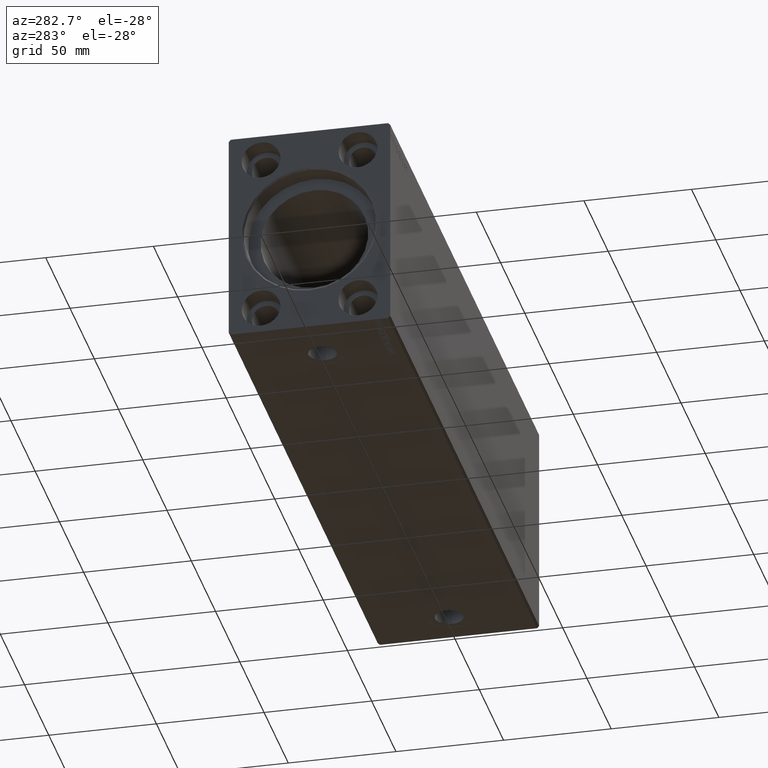
[diagram: clean part render]
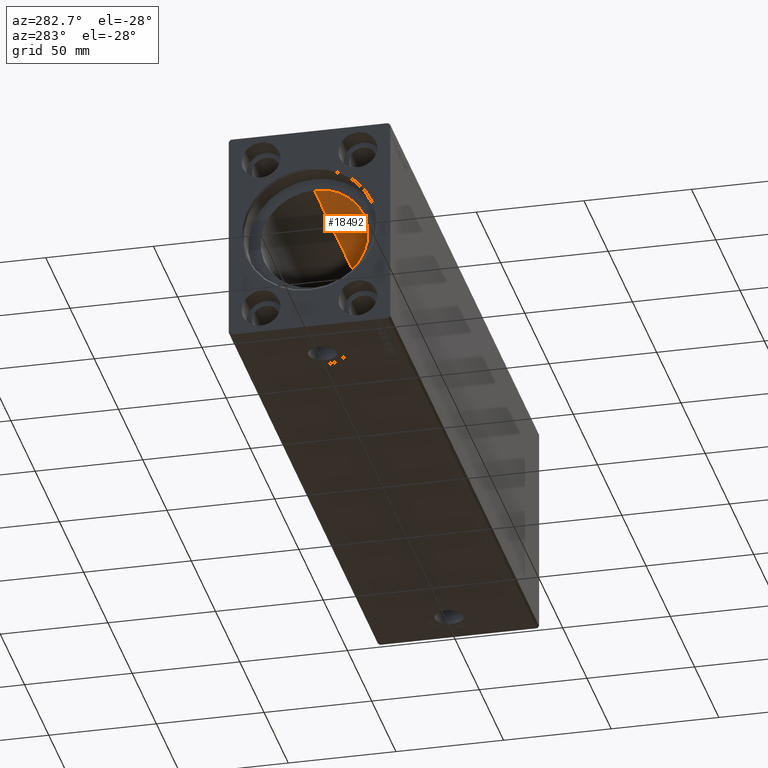
[diagram: same view with one face highlighted and labeled with its STEP entity id]
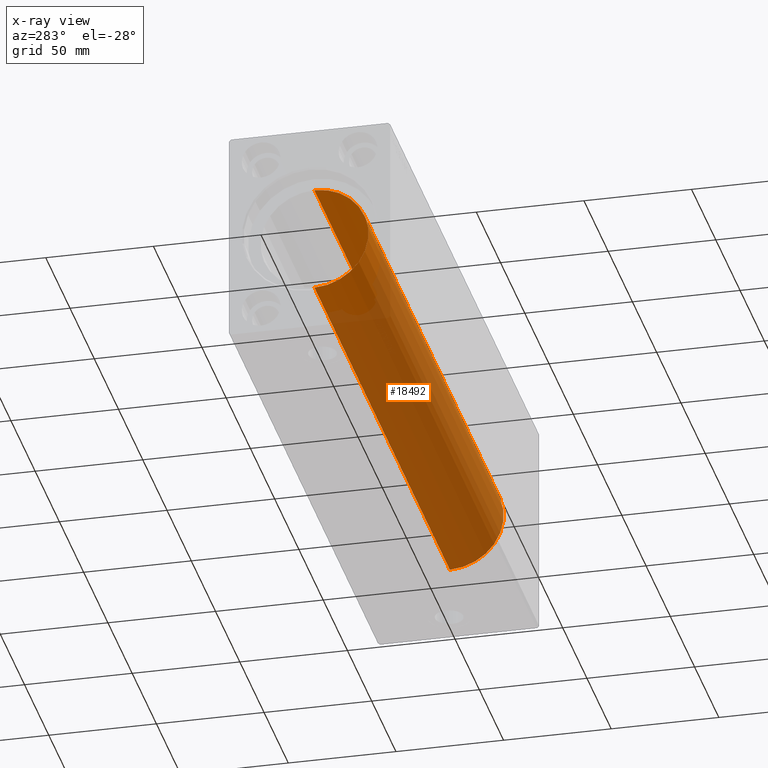
[diagram: x-ray of the same camera — body ghosted, the highlighted face saturated]
A machine part, auxiliary view. The second image highlights one B-rep face of the part: STEP entity #18492.
The next image is the same camera in x-ray: the body ghosted, the highlighted face saturated — about 82% of this face is hidden behind the body in this view.
In plain terms, the highlighted cylindrical surface (partial cylindrical patch) has radius 25 mm, axis along (-1, -0, -0).
Its self-contained STEP definition (entity closure, byte-faithful):
#695 = VECTOR ( 'NONE', #3906, 1000.000000000000000 ) ;
#1247 = CARTESIAN_POINT ( 'NONE',  ( 289.1999999999999886, 3.061616997868383043E-15, -25.00000000000000000 ) ) ;
#3906 = DIRECTION ( 'NONE',  ( -1.000000000000000000, -0.000000000000000000, -0.000000000000000000 ) ) ;
#4202 = CARTESIAN_POINT ( 'NONE',  ( 10.00000000000000888, 0.000000000000000000, 0.000000000000000000 ) ) ;
#4348 = EDGE_LOOP ( 'NONE', ( #24108, #39495, #38309, #22721 ) ) ;
#7739 = VECTOR ( 'NONE', #28313, 1000.000000000000000 ) ;
#8021 = CARTESIAN_POINT ( 'NONE',  ( 289.1999999999999886, 0.000000000000000000, 25.00000000000000000 ) ) ;
#8270 = CARTESIAN_POINT ( 'NONE',  ( 10.00000000000000888, 3.061616997868383043E-15, -25.00000000000000000 ) ) ;
#8732 = EDGE_CURVE ( 'NONE', #31361, #38836, #36799, .T. ) ;
#8764 = AXIS2_PLACEMENT_3D ( 'NONE', #29076, #22832, #38739 ) ;
#9937 = LINE ( 'NONE', #36144, #695 ) ;
#9953 = VERTEX_POINT ( 'NONE', #8021 ) ;
#10457 = DIRECTION ( 'NONE',  ( 0.000000000000000000, 0.000000000000000000, 1.000000000000000000 ) ) ;
#13158 = CYLINDRICAL_SURFACE ( 'NONE', #8764, 25.00000000000000000 ) ;
#16572 = DIRECTION ( 'NONE',  ( -1.000000000000000000, 0.000000000000000000, 0.000000000000000000 ) ) ;
#17308 = CIRCLE ( 'NONE', #38566, 25.00000000000000000 ) ;
#18492 = ADVANCED_FACE ( 'NONE', ( #32496 ), #13158, .F. ) ;
#22721 = ORIENTED_EDGE ( 'NONE', *, *, #33081, .F. ) ;
#22814 = DIRECTION ( 'NONE',  ( 0.000000000000000000, 0.000000000000000000, 1.000000000000000000 ) ) ;
#22832 = DIRECTION ( 'NONE',  ( -1.000000000000000000, -0.000000000000000000, -0.000000000000000000 ) ) ;
#23234 = CARTESIAN_POINT ( 'NONE',  ( 289.1999999999999886, 0.000000000000000000, 0.000000000000000000 ) ) ;
#24108 = ORIENTED_EDGE ( 'NONE', *, *, #31735, .F. ) ;
#25623 = EDGE_CURVE ( 'NONE', #38533, #31361, #9937, .T. ) ;
#27866 = AXIS2_PLACEMENT_3D ( 'NONE', #4202, #39664, #10457 ) ;
#28098 = LINE ( 'NONE', #40983, #7739 ) ;
#28313 = DIRECTION ( 'NONE',  ( -1.000000000000000000, -0.000000000000000000, -0.000000000000000000 ) ) ;
#29076 = CARTESIAN_POINT ( 'NONE',  ( 289.1999999999999886, 0.000000000000000000, 0.000000000000000000 ) ) ;
#31361 = VERTEX_POINT ( 'NONE', #8270 ) ;
#31735 = EDGE_CURVE ( 'NONE', #38533, #9953, #17308, .T. ) ;
#32496 = FACE_OUTER_BOUND ( 'NONE', #4348, .T. ) ;
#33081 = EDGE_CURVE ( 'NONE', #9953, #38836, #28098, .T. ) ;
#36144 = CARTESIAN_POINT ( 'NONE',  ( 289.1999999999999886, 3.061616997868383043E-15, -25.00000000000000000 ) ) ;
#36799 = CIRCLE ( 'NONE', #27866, 25.00000000000000000 ) ;
#38309 = ORIENTED_EDGE ( 'NONE', *, *, #8732, .T. ) ;
#38533 = VERTEX_POINT ( 'NONE', #1247 ) ;
#38566 = AXIS2_PLACEMENT_3D ( 'NONE', #23234, #16572, #22814 ) ;
#38739 = DIRECTION ( 'NONE',  ( 0.000000000000000000, 0.000000000000000000, 1.000000000000000000 ) ) ;
#38836 = VERTEX_POINT ( 'NONE', #39446 ) ;
#39446 = CARTESIAN_POINT ( 'NONE',  ( 10.00000000000000888, 0.000000000000000000, 25.00000000000000000 ) ) ;
#39495 = ORIENTED_EDGE ( 'NONE', *, *, #25623, .T. ) ;
#39664 = DIRECTION ( 'NONE',  ( -1.000000000000000000, 0.000000000000000000, 0.000000000000000000 ) ) ;
#40983 = CARTESIAN_POINT ( 'NONE',  ( 289.1999999999999886, 0.000000000000000000, 25.00000000000000000 ) ) ;